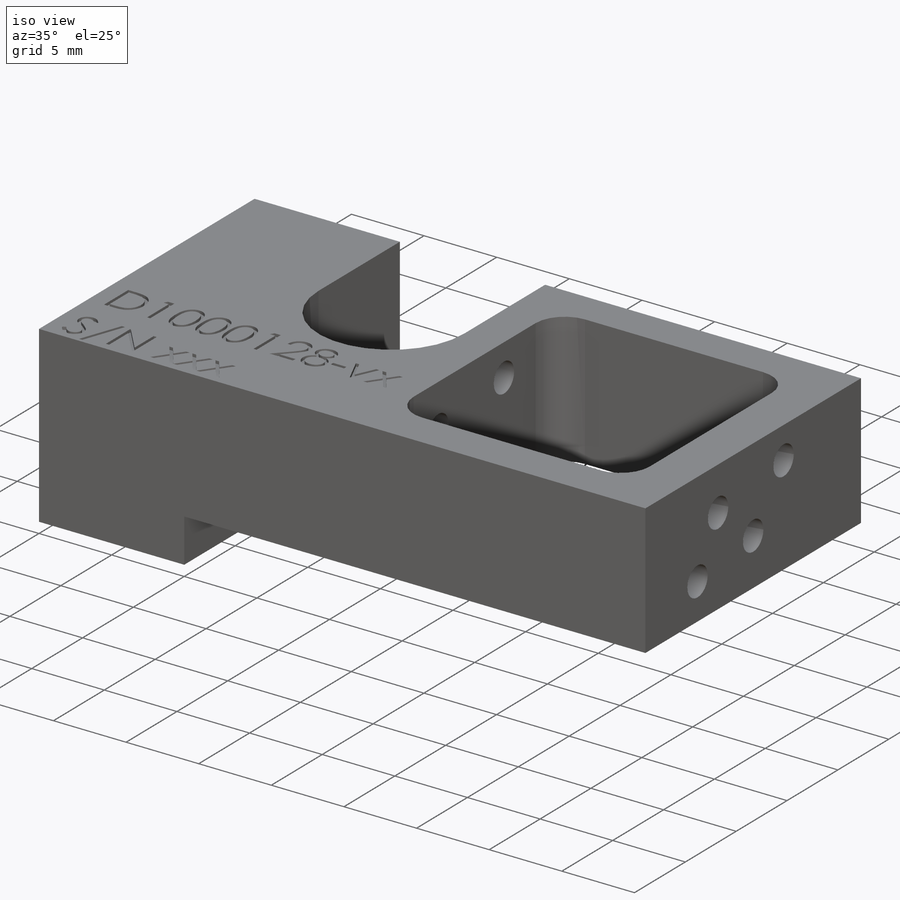
[diagram: iso view]
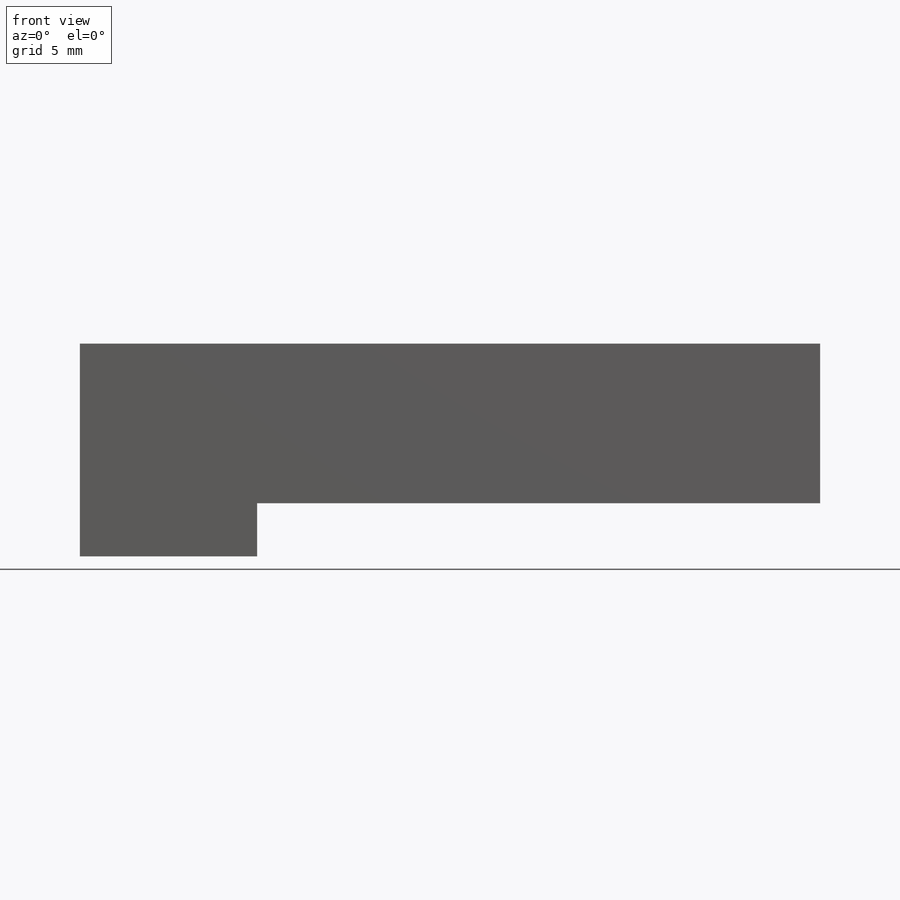
[diagram: front view]
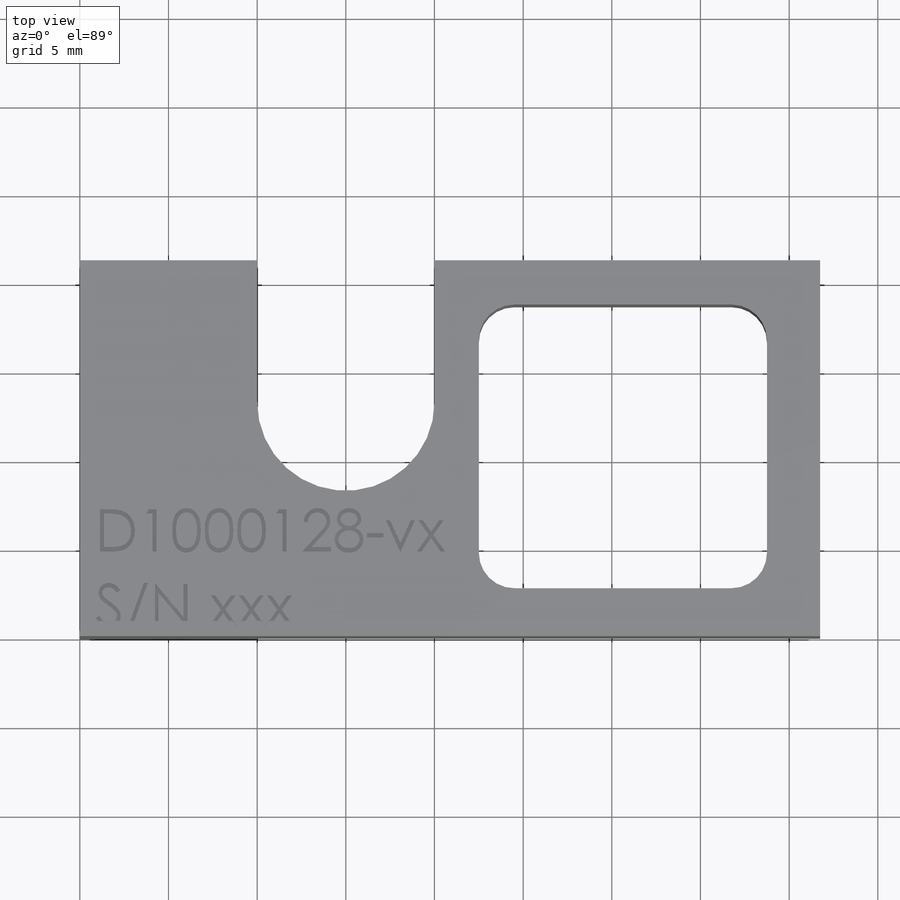
[diagram: top view]
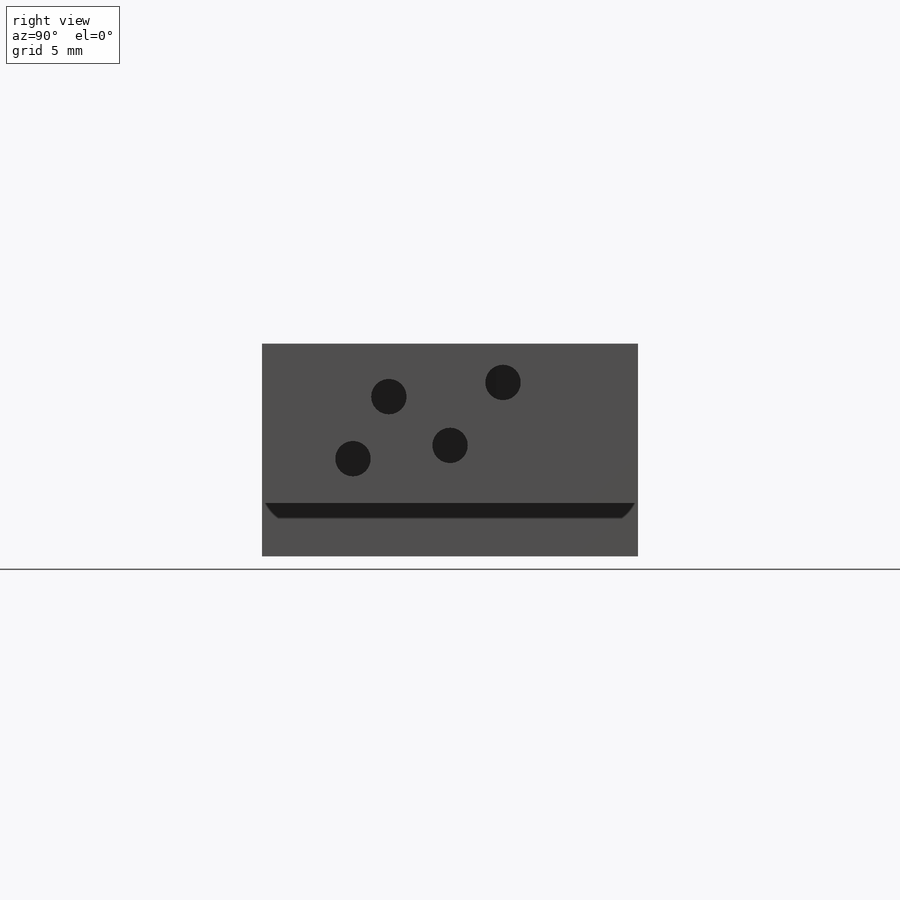
[diagram: right view]
SOLIDWORKS PART (.sldprt)
format: sldprt  version: not decoded by parser v0  size: 517,120 bytes
history: native  units: mm
features: sketch x6, cut_extrude x5, material x1, extrude x1, fillet x1 (+16 scaffold rows collapsed)
feature tree (30):
  scaffold x16  (default folders/planes/origin — collapsed)
  material  "PE High Density"
  sketch  "Sketch1"  dims[D1=41.75mm D2=21.2mm D3=22.5mm D4=38.75mm D5=16.0mm D6=2.5mm]
  extrude  "Extrude2"  Depth=12mm
  sketch  "Sketch2"  dims[c1.D3=6.0mm c1.D1=10.0mm c1.D2=8.0mm c2.D3=15.0mm]
  cut_extrude  "Extrude3"  [1 undecoded]
  fillet  "Fillet1"  Radius=2mm
  sketch  "Sketch4"  dims[D1=3.0mm]
  cut_extrude  "Extrude4"  Depth=31.75mm
  sketch  "Sketch5"  dims[c1.D1=2.0mm c1.D2=15.0mm c1.D3=0.54mm c1.D4=12.5mm c1.D5=6.25mm c1.D6=12.5mm c2.D6=~30.045088deg c2.D7=2.2mm c2.D8=3.0mm c2.D9=6.5mm]
  cut_extrude  "Extrude5"  Depth=23mm
  sketch  "Sketch6"  dims[D1=2.0mm D2=15.0mm D3=6.25mm]
  cut_extrude  "Extrude6"  Depth=5mm
  sketch  "Sketch7"
  cut_extrude  "Extrude7"  Depth=0.2mm
decode coverage: 11 of 13 modeling features carry decoded parameters
note: ~ marks probable driven/reference dimensions
note: 1 parameter value undecoded
note: suppression state not decoded; provenance and decode notes live in map.json
